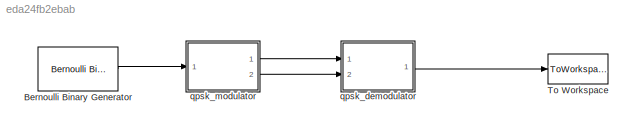
MODEL slx_eda24fb2ebab
KIND model
CONFIG AbsTol = auto
CONFIG EnableMultiTasking = off
CONFIG FixedStep = auto
CONFIG MaxStep = auto
CONFIG MinStep = auto
CONFIG RelTol = 1e-3
CONFIG SampleTimeConstraint = Unconstrained
CONFIG Solver = VariableStepAuto
CONFIG SolverName = VariableStepAuto
CONFIG StartTime = 0.0
CONFIG StopTime = 0
BLOCK [Reference] Bernoulli Binary Generator  REF=commrandsrc3/Bernoulli Binary
Generator
  Ports = [0, 1]
  SourceBlock = commrandsrc3/Bernoulli Binary\nGenerator
  SourceProductBaseCode = CM
  SourceProductName = Communications System Toolbox
  SourceType = Bernoulli Binary Generator
BLOCK [ToWorkspace] To Workspace
  FixptAsFi = on
  MaxDataPoints = inf
  Ports = [1]
  SampleTime = -1
  Save2DSignal = 2-D array (concatenate along first dimension)
  VariableName = simout2
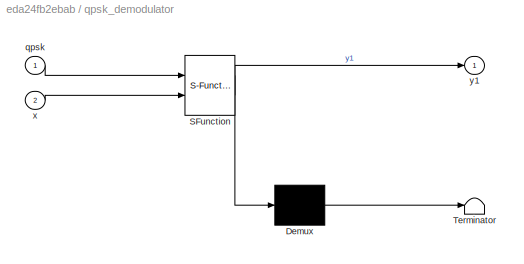
BLOCK [SubSystem] qpsk_demodulator
  ErrorFcn = Stateflow.Translate.translate
  PermitHierarchicalResolution = ExplicitOnly
  Ports = [2, 1]
  RequestExecContextInheritance = off
  SFBlockType = MATLAB Function
  TreatAsAtomicUnit = on
BLOCK [Demux] qpsk_demodulator/ Demux 
  Outputs = 1
  Ports = [1, 1]
BLOCK [S-Function] qpsk_demodulator/ SFunction 
  EnableBusSupport = on
  FunctionName = sf_sfun
  PortCounts = [2 2]
  Ports = [2, 2]
  SFcnIsStateOwnerBlock = off
  SFunctionDeploymentMode = off
  Tag = Stateflow S-Function untitled1 1
BLOCK [Terminator] qpsk_demodulator/ Terminator 
BLOCK [Inport] qpsk_demodulator/qpsk
  IconDisplay = Port number
BLOCK [Inport] qpsk_demodulator/x
  IconDisplay = Port number
  Port = 2
BLOCK [Outport] qpsk_demodulator/y1
  IconDisplay = Port number
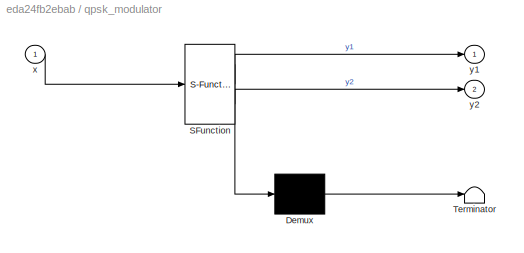
BLOCK [SubSystem] qpsk_modulator
  ErrorFcn = Stateflow.Translate.translate
  PermitHierarchicalResolution = ExplicitOnly
  Ports = [1, 2]
  RequestExecContextInheritance = off
  SFBlockType = MATLAB Function
  TreatAsAtomicUnit = on
BLOCK [Demux] qpsk_modulator/ Demux 
  Outputs = 1
  Ports = [1, 1]
BLOCK [S-Function] qpsk_modulator/ SFunction 
  EnableBusSupport = on
  FunctionName = sf_sfun
  PortCounts = [1 3]
  Ports = [1, 3]
  SFcnIsStateOwnerBlock = off
  SFunctionDeploymentMode = off
  Tag = Stateflow S-Function untitled1 2
BLOCK [Terminator] qpsk_modulator/ Terminator 
BLOCK [Inport] qpsk_modulator/x
  IconDisplay = Port number
BLOCK [Outport] qpsk_modulator/y1
  IconDisplay = Port number
BLOCK [Outport] qpsk_modulator/y2
  IconDisplay = Port number
  Port = 2
LINE Bernoulli Binary Generator:1 -> qpsk_modulator:1
LINE qpsk_demodulator:1 -> To Workspace:1
LINE qpsk_modulator:1 -> qpsk_demodulator:1
LINE qpsk_modulator:2 -> qpsk_demodulator:2
CHART qpsk_demodulator states=1 transitions=1
  STATE_LABEL 'eML_blk_kernel()'
  STATE_LABEL 'SCRIPT:\nfunction y1 = qpsk_demodulator(qpsk,x)\nperror = zeros(1,7);\nsnrd = zeros(1,7);\na=0;\nfor r=2:7\n    a = a + 4;\n    snrd(r) = a;\nend\nsnrl = zeros(1,7);\nfor r=1:7\n    cnoise = randn(1,5000) + 1j*randn(1,5000);\n    h = randn(1,5000) + 1j*randn(1,5000);\n    snrl(r) = 10^(snrd(r)/10);\n    sigma = sqrt(10.^(-snrl(r)/10));\n    y = h.*qpsk + sigma*cnoise;\n    y = y./h;\n    qpsk1 = zeros(1,10000);\n  ...<+476ch>'
CHART qpsk_modulator states=1 transitions=1
  STATE_LABEL 'eML_blk_kernel()'
  STATE_LABEL 'SCRIPT:\nfunction [y1,y2] = qpsk_modulator(x)\nx = transpose(x);\nqpsk = zeros(1,5000) + 1j*zeros(1,5000);\nk=1;\nfor i=1:2:10000\n    if x(i)==0 && x(i+1)==0\n        qpsk(k)=1+1j;\n    elseif x(i)==0 && x(i+1)==1\n        qpsk(k)=-1+1j;\n    elseif x(i)==1 && x(i+1)==0\n        qpsk(k)=-1-1j;\n    else\n        qpsk(k)=1-1j;\n    end\n    k=k+1;\nend\ny1 = qpsk;\ny2 = x;\n'
